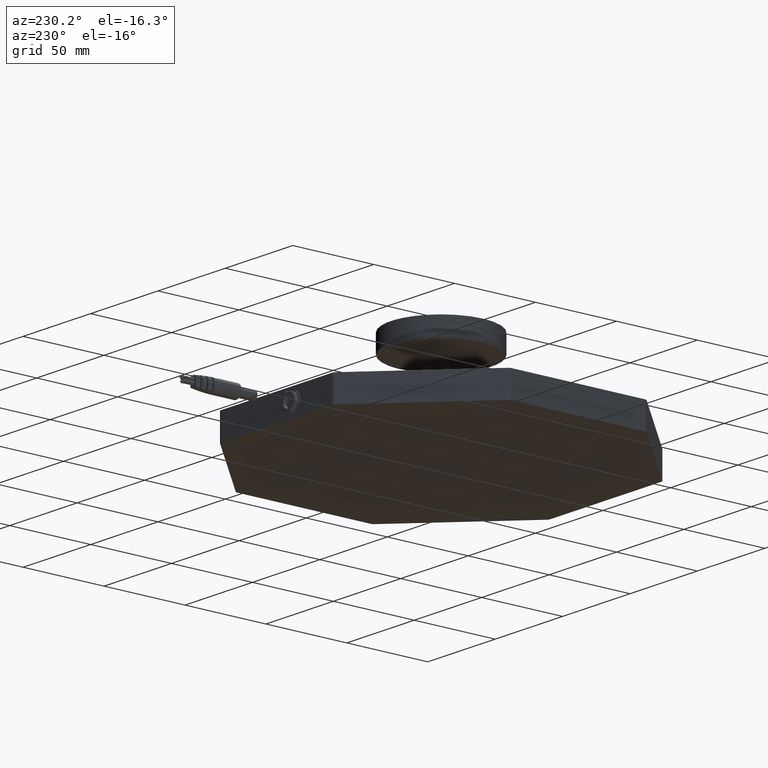
[diagram: clean part render]
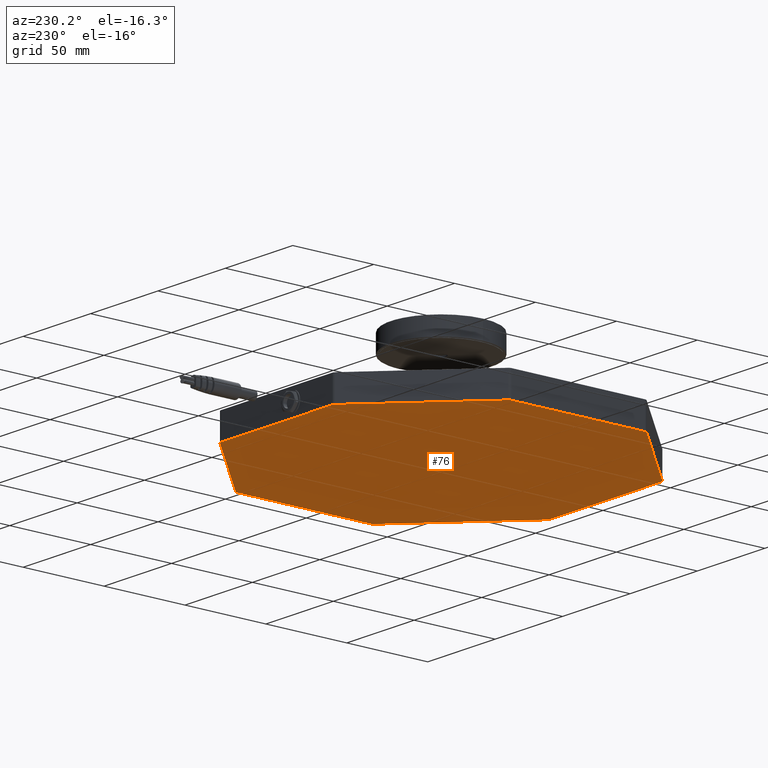
[diagram: same view with one face highlighted and labeled with its STEP entity id]
A machine part, auxiliary view. The second image highlights one B-rep face of the part: STEP entity #76.
In plain terms, the highlighted planar face has unit normal (0, 0, -1).
Its self-contained STEP definition (entity closure, byte-faithful):
#76=ADVANCED_FACE('',(#228),#2097,.T.);
#228=FACE_OUTER_BOUND('',#372,.T.);
#372=EDGE_LOOP('',(#604,#605,#606,#607,#608,#609,#610,#611,#612,#613,#614,
#615,#616,#617,#618,#619));
#604=ORIENTED_EDGE('',*,*,#1222,.T.);
#605=ORIENTED_EDGE('',*,*,#1221,.T.);
#606=ORIENTED_EDGE('',*,*,#1216,.T.);
#607=ORIENTED_EDGE('',*,*,#1223,.T.);
#608=ORIENTED_EDGE('',*,*,#1225,.T.);
#609=ORIENTED_EDGE('',*,*,#1224,.T.);
#610=ORIENTED_EDGE('',*,*,#1217,.T.);
#611=ORIENTED_EDGE('',*,*,#1226,.T.);
#612=ORIENTED_EDGE('',*,*,#1228,.T.);
#613=ORIENTED_EDGE('',*,*,#1227,.T.);
#614=ORIENTED_EDGE('',*,*,#1218,.T.);
#615=ORIENTED_EDGE('',*,*,#1229,.T.);
#616=ORIENTED_EDGE('',*,*,#1231,.T.);
#617=ORIENTED_EDGE('',*,*,#1230,.T.);
#618=ORIENTED_EDGE('',*,*,#1219,.T.);
#619=ORIENTED_EDGE('',*,*,#1220,.T.);
#1216=EDGE_CURVE('',#1869,#1870,#1528,.T.);
#1217=EDGE_CURVE('',#1873,#1874,#1529,.T.);
#1218=EDGE_CURVE('',#1877,#1878,#1530,.T.);
#1219=EDGE_CURVE('',#1881,#1882,#1531,.T.);
#1220=EDGE_CURVE('',#1882,#1867,#1532,.T.);
#1221=EDGE_CURVE('',#1868,#1869,#1533,.T.);
#1222=EDGE_CURVE('',#1867,#1868,#1534,.T.);
#1223=EDGE_CURVE('',#1870,#1871,#1535,.T.);
#1224=EDGE_CURVE('',#1872,#1873,#1536,.T.);
#1225=EDGE_CURVE('',#1871,#1872,#1537,.T.);
#1226=EDGE_CURVE('',#1874,#1875,#1538,.T.);
#1227=EDGE_CURVE('',#1876,#1877,#1539,.T.);
#1228=EDGE_CURVE('',#1875,#1876,#1540,.T.);
#1229=EDGE_CURVE('',#1878,#1879,#1541,.T.);
#1230=EDGE_CURVE('',#1880,#1881,#1542,.T.);
#1231=EDGE_CURVE('',#1879,#1880,#1543,.T.);
#1528=B_SPLINE_CURVE_WITH_KNOTS('',1,(#3496,#3497),.UNSPECIFIED.,.F.,.F.,
(2,2),(-83.4226114619414,-0.828427124746209),.UNSPECIFIED.);
#1529=B_SPLINE_CURVE_WITH_KNOTS('',1,(#3498,#3499),.UNSPECIFIED.,.F.,.F.,
(2,2),(-83.4226114619414,-0.828427124746209),.UNSPECIFIED.);
#1530=B_SPLINE_CURVE_WITH_KNOTS('',1,(#3500,#3501),.UNSPECIFIED.,.F.,.F.,
(2,2),(-83.4226114619414,-0.828427124746209),.UNSPECIFIED.);
#1531=B_SPLINE_CURVE_WITH_KNOTS('',1,(#3502,#3503),.UNSPECIFIED.,.F.,.F.,
(2,2),(-83.4226114619414,-0.828427124746209),.UNSPECIFIED.);
#1532=B_SPLINE_CURVE_WITH_KNOTS('',5,(#3504,#3505,#3506,#3507,#3508,#3509),
 .UNSPECIFIED.,.F.,.F.,(6,6),(3.92699081698723,4.71238898038469),
 .UNSPECIFIED.);
#1533=B_SPLINE_CURVE_WITH_KNOTS('',5,(#3510,#3511,#3512,#3513,#3514,#3515),
 .UNSPECIFIED.,.F.,.F.,(6,6),(3.92699081698723,4.71238898038469),
 .UNSPECIFIED.);
#1534=B_SPLINE_CURVE_WITH_KNOTS('',1,(#3516,#3517),.UNSPECIFIED.,.F.,.F.,
(2,2),(-83.4226114619414,-0.828427124746209),.UNSPECIFIED.);
#1535=B_SPLINE_CURVE_WITH_KNOTS('',5,(#3518,#3519,#3520,#3521,#3522,#3523),
 .UNSPECIFIED.,.F.,.F.,(6,6),(3.92699081698723,4.71238898038469),
 .UNSPECIFIED.);
#1536=B_SPLINE_CURVE_WITH_KNOTS('',5,(#3524,#3525,#3526,#3527,#3528,#3529),
 .UNSPECIFIED.,.F.,.F.,(6,6),(3.92699081698723,4.71238898038469),
 .UNSPECIFIED.);
#1537=B_SPLINE_CURVE_WITH_KNOTS('',1,(#3530,#3531),.UNSPECIFIED.,.F.,.F.,
(2,2),(-83.4226114619414,-0.828427124746209),.UNSPECIFIED.);
#1538=B_SPLINE_CURVE_WITH_KNOTS('',5,(#3532,#3533,#3534,#3535,#3536,#3537),
 .UNSPECIFIED.,.F.,.F.,(6,6),(3.92699081698723,4.71238898038469),
 .UNSPECIFIED.);
#1539=B_SPLINE_CURVE_WITH_KNOTS('',5,(#3538,#3539,#3540,#3541,#3542,#3543),
 .UNSPECIFIED.,.F.,.F.,(6,6),(3.92699081698723,4.71238898038469),
 .UNSPECIFIED.);
#1540=B_SPLINE_CURVE_WITH_KNOTS('',1,(#3544,#3545),.UNSPECIFIED.,.F.,.F.,
(2,2),(-83.4226114619414,-0.828427124746209),.UNSPECIFIED.);
#1541=B_SPLINE_CURVE_WITH_KNOTS('',5,(#3546,#3547,#3548,#3549,#3550,#3551),
 .UNSPECIFIED.,.F.,.F.,(6,6),(3.92699081698723,4.71238898038469),
 .UNSPECIFIED.);
#1542=B_SPLINE_CURVE_WITH_KNOTS('',5,(#3552,#3553,#3554,#3555,#3556,#3557),
 .UNSPECIFIED.,.F.,.F.,(6,6),(3.92699081698723,4.71238898038469),
 .UNSPECIFIED.);
#1543=B_SPLINE_CURVE_WITH_KNOTS('',1,(#3558,#3559),.UNSPECIFIED.,.F.,.F.,
(2,2),(-83.4226114619414,-0.828427124746209),.UNSPECIFIED.);
#1867=VERTEX_POINT('',#3195);
#1868=VERTEX_POINT('',#3196);
#1869=VERTEX_POINT('',#3197);
#1870=VERTEX_POINT('',#3198);
#1871=VERTEX_POINT('',#3199);
#1872=VERTEX_POINT('',#3200);
#1873=VERTEX_POINT('',#3201);
#1874=VERTEX_POINT('',#3202);
#1875=VERTEX_POINT('',#3203);
#1876=VERTEX_POINT('',#3204);
#1877=VERTEX_POINT('',#3205);
#1878=VERTEX_POINT('',#3206);
#1879=VERTEX_POINT('',#3207);
#1880=VERTEX_POINT('',#3208);
#1881=VERTEX_POINT('',#3209);
#1882=VERTEX_POINT('',#3210);
#2097=PLANE('',#2176);
#2176=AXIS2_PLACEMENT_3D('',#2675,#2239,$);
#2239=DIRECTION('',(0.,0.,-1.));
#2675=CARTESIAN_POINT('',(1.4210854715202E-14,146.702029679211,0.));
#3195=CARTESIAN_POINT('',(41.2970921685976,-101.7,0.));
#3196=CARTESIAN_POINT('',(-41.2970921685975,-101.7,0.));
#3197=CARTESIAN_POINT('',(-42.7113057309707,-101.114213562373,0.));
#3198=CARTESIAN_POINT('',(-101.114213562373,-42.7113057309707,0.));
#3199=CARTESIAN_POINT('',(-101.7,-41.2970921685976,0.));
#3200=CARTESIAN_POINT('',(-101.7,41.2970921685975,0.));
#3201=CARTESIAN_POINT('',(-101.114213562373,42.7113057309707,0.));
#3202=CARTESIAN_POINT('',(-42.7113057309707,101.114213562373,0.));
#3203=CARTESIAN_POINT('',(-41.2970921685976,101.7,0.));
#3204=CARTESIAN_POINT('',(41.2970921685975,101.7,0.));
#3205=CARTESIAN_POINT('',(42.7113057309707,101.114213562373,0.));
#3206=CARTESIAN_POINT('',(101.114213562373,42.7113057309707,0.));
#3207=CARTESIAN_POINT('',(101.7,41.2970921685976,0.));
#3208=CARTESIAN_POINT('',(101.7,-41.2970921685975,0.));
#3209=CARTESIAN_POINT('',(101.114213562373,-42.7113057309707,0.));
#3210=CARTESIAN_POINT('',(42.7113057309707,-101.114213562373,0.));
#3496=CARTESIAN_POINT('',(-42.7113057309707,-101.114213562373,0.));
#3497=CARTESIAN_POINT('',(-101.114213562373,-42.7113057309707,0.));
#3498=CARTESIAN_POINT('',(-101.114213562373,42.7113057309707,0.));
#3499=CARTESIAN_POINT('',(-42.7113057309707,101.114213562373,0.));
#3500=CARTESIAN_POINT('',(42.7113057309707,101.114213562373,0.));
#3501=CARTESIAN_POINT('',(101.114213562373,42.7113057309707,0.));
#3502=CARTESIAN_POINT('',(101.114213562373,-42.7113057309707,0.));
#3503=CARTESIAN_POINT('',(42.7113057309707,-101.114213562373,0.));
#3504=CARTESIAN_POINT('',(42.7113057309707,-101.114213562373,0.));
#3505=CARTESIAN_POINT('',(42.4891598472719,-101.336354103064,0.));
#3506=CARTESIAN_POINT('',(42.2234072890813,-101.514899536068,0.));
#3507=CARTESIAN_POINT('',(41.9254162345144,-101.638331472336,0.));
#3508=CARTESIAN_POINT('',(41.6112501120728,-101.699996221923,0.));
#3509=CARTESIAN_POINT('',(41.2970921685976,-101.7,0.));
#3510=CARTESIAN_POINT('',(-41.2970921685975,-101.7,0.));
#3511=CARTESIAN_POINT('',(-41.6112501120728,-101.699996221923,0.));
#3512=CARTESIAN_POINT('',(-41.9254162345142,-101.638331472336,0.));
#3513=CARTESIAN_POINT('',(-42.2234072890814,-101.514899536069,0.));
#3514=CARTESIAN_POINT('',(-42.4891598472718,-101.336354103064,0.));
#3515=CARTESIAN_POINT('',(-42.7113057309707,-101.114213562373,0.));
#3516=CARTESIAN_POINT('',(41.2970921685976,-101.7,0.));
#3517=CARTESIAN_POINT('',(-41.2970921685975,-101.7,0.));
#3518=CARTESIAN_POINT('',(-101.114213562373,-42.7113057309707,0.));
#3519=CARTESIAN_POINT('',(-101.336354103064,-42.4891598472719,0.));
#3520=CARTESIAN_POINT('',(-101.514899536068,-42.2234072890813,0.));
#3521=CARTESIAN_POINT('',(-101.638331472336,-41.9254162345144,0.));
#3522=CARTESIAN_POINT('',(-101.699996221923,-41.6112501120728,0.));
#3523=CARTESIAN_POINT('',(-101.7,-41.2970921685976,0.));
#3524=CARTESIAN_POINT('',(-101.7,41.2970921685975,0.));
#3525=CARTESIAN_POINT('',(-101.699996221923,41.6112501120728,0.));
#3526=CARTESIAN_POINT('',(-101.638331472336,41.9254162345142,0.));
#3527=CARTESIAN_POINT('',(-101.514899536069,42.2234072890814,0.));
#3528=CARTESIAN_POINT('',(-101.336354103064,42.4891598472718,0.));
#3529=CARTESIAN_POINT('',(-101.114213562373,42.7113057309707,0.));
#3530=CARTESIAN_POINT('',(-101.7,-41.2970921685976,0.));
#3531=CARTESIAN_POINT('',(-101.7,41.2970921685975,0.));
#3532=CARTESIAN_POINT('',(-42.7113057309707,101.114213562373,0.));
#3533=CARTESIAN_POINT('',(-42.4891598472719,101.336354103064,0.));
#3534=CARTESIAN_POINT('',(-42.2234072890813,101.514899536068,0.));
#3535=CARTESIAN_POINT('',(-41.9254162345144,101.638331472336,0.));
#3536=CARTESIAN_POINT('',(-41.6112501120728,101.699996221923,0.));
#3537=CARTESIAN_POINT('',(-41.2970921685976,101.7,0.));
#3538=CARTESIAN_POINT('',(41.2970921685975,101.7,0.));
#3539=CARTESIAN_POINT('',(41.6112501120728,101.699996221923,0.));
#3540=CARTESIAN_POINT('',(41.9254162345142,101.638331472336,0.));
#3541=CARTESIAN_POINT('',(42.2234072890814,101.514899536069,0.));
#3542=CARTESIAN_POINT('',(42.4891598472718,101.336354103064,0.));
#3543=CARTESIAN_POINT('',(42.7113057309707,101.114213562373,0.));
#3544=CARTESIAN_POINT('',(-41.2970921685976,101.7,0.));
#3545=CARTESIAN_POINT('',(41.2970921685975,101.7,0.));
#3546=CARTESIAN_POINT('',(101.114213562373,42.7113057309707,0.));
#3547=CARTESIAN_POINT('',(101.336354103064,42.4891598472719,0.));
#3548=CARTESIAN_POINT('',(101.514899536068,42.2234072890813,0.));
#3549=CARTESIAN_POINT('',(101.638331472336,41.9254162345144,0.));
#3550=CARTESIAN_POINT('',(101.699996221923,41.6112501120728,0.));
#3551=CARTESIAN_POINT('',(101.7,41.2970921685976,0.));
#3552=CARTESIAN_POINT('',(101.7,-41.2970921685975,0.));
#3553=CARTESIAN_POINT('',(101.699996221923,-41.6112501120728,0.));
#3554=CARTESIAN_POINT('',(101.638331472336,-41.9254162345142,0.));
#3555=CARTESIAN_POINT('',(101.514899536069,-42.2234072890814,0.));
#3556=CARTESIAN_POINT('',(101.336354103064,-42.4891598472718,0.));
#3557=CARTESIAN_POINT('',(101.114213562373,-42.7113057309707,0.));
#3558=CARTESIAN_POINT('',(101.7,41.2970921685976,0.));
#3559=CARTESIAN_POINT('',(101.7,-41.2970921685975,0.));